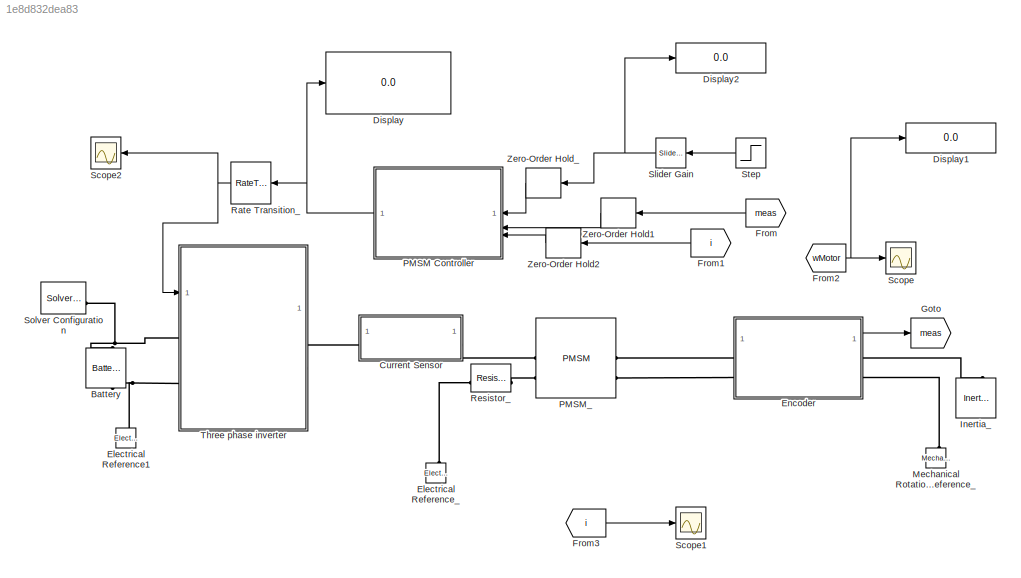
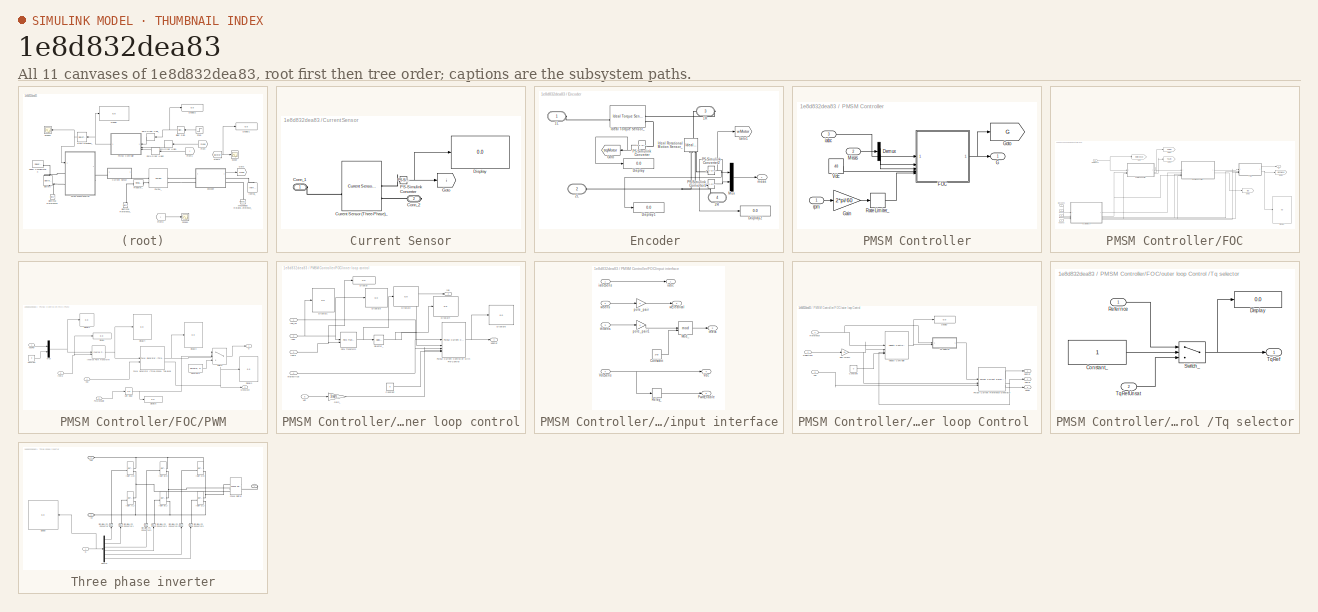
[diagram: thumbnail index - all 11 canvases of the model, root first then tree order]
MODEL slx_1e8d832dea83
KIND model
CONFIG AbsTol = auto
CONFIG EnableMultiTasking = off
CONFIG FixedStep = auto
CONFIG MaxStep = auto
CONFIG MinStep = auto
CONFIG RelTol = 1e-6
CONFIG SampleTimeConstraint = Unconstrained
CONFIG SolverName = VariableStepAuto
CONFIG StartTime = 0.0
CONFIG StopTime = 10
BLOCK [Reference] Battery  REF=batteryecm_lib/Battery
  NameLocation = right
  SourceBlock = batteryecm_lib/Battery
  SourceType = Battery
BLOCK [SubSystem] Current Sensor
BLOCK [PMIOPort] Current Sensor/Conn_1
  Side = Left
BLOCK [PMIOPort] Current Sensor/Conn_2
  NameLocation = top
  Port = 2
  Side = Right
BLOCK [Reference] Current Sensor/Current Sensor (Three-Phase)_  REF=ee_lib/Sensors &
Transducers/Current Sensor
(Three-Phase)
  SourceBlock = ee_lib/Sensors &\nTransducers/Current Sensor\n(Three-Phase)
  SourceType = Current Sensor\n(Three-Phase)
BLOCK [Display] Current Sensor/Display
  Decimation = 1
BLOCK [Goto] Current Sensor/Goto
  GotoTag = i
  TagVisibility = global
BLOCK [Reference] Current Sensor/PS-Simulink Converter  REF=nesl_utility/PS-Simulink
Converter
  SourceBlock = nesl_utility/PS-Simulink\nConverter
  SourceType = PS-Simulink\nConverter
BLOCK [Display] Display
  Decimation = 1
BLOCK [Display] Display1
  Decimation = 1
BLOCK [Display] Display2
  Decimation = 1
BLOCK [Reference] Electrical Reference1  REF=fl_lib/Electrical/Electrical Elements/Electrical Reference
  NameLocation = right
  SourceBlock = fl_lib/Electrical/Electrical Elements/Electrical Reference
  SourceType = Electrical Reference
BLOCK [Reference] Electrical Reference_  REF=fl_lib/Electrical/Electrical Elements/Electrical Reference
  NameLocation = right
  SourceBlock = fl_lib/Electrical/Electrical Elements/Electrical Reference
  SourceType = Electrical Reference
BLOCK [SubSystem] Encoder 
BLOCK [PMIOPort] Encoder /1L
  Side = Left
BLOCK [PMIOPort] Encoder /1R
  NameLocation = top
  Port = 3
  Side = Right
BLOCK [PMIOPort] Encoder /2L
  Port = 2
  Side = Left
BLOCK [PMIOPort] Encoder /2R
  NameLocation = top
  Port = 4
  Side = Right
BLOCK [Display] Encoder /Display
  Decimation = 1
BLOCK [Display] Encoder /Display1
  Decimation = 1
BLOCK [Display] Encoder /Display2
  Decimation = 1
BLOCK [Goto] Encoder /Goto
  GotoTag = trqMotor
  NameLocation = top
  TagVisibility = global
BLOCK [Goto] Encoder /Goto1
  GotoTag = wMotor
  TagVisibility = global
BLOCK [Reference] Encoder /Ideal Rotational Motion Sensor_  REF=fl_lib/Mechanical/Mechanical Sensors/Ideal Rotational
Motion Sensor
  NameLocation = left
  SourceBlock = fl_lib/Mechanical/Mechanical Sensors/Ideal Rotational\nMotion Sensor
  SourceType = Ideal Rotational\nMotion Sensor
BLOCK [Reference] Encoder /Ideal Torque Sensor_  REF=fl_lib/Mechanical/Mechanical Sensors/Ideal Torque Sensor
  SourceBlock = fl_lib/Mechanical/Mechanical Sensors/Ideal Torque Sensor
  SourceType = Ideal Torque Sensor
BLOCK [Mux] Encoder /Mux
  DisplayOption = bar
  Inputs = 2
BLOCK [Reference] Encoder /PS-Simulink Converter  REF=nesl_utility/PS-Simulink
Converter
  NameLocation = top
  SourceBlock = nesl_utility/PS-Simulink\nConverter
  SourceType = PS-Simulink\nConverter
BLOCK [Reference] Encoder /PS-Simulink Converter1  REF=nesl_utility/PS-Simulink
Converter
  SourceBlock = nesl_utility/PS-Simulink\nConverter
  SourceType = PS-Simulink\nConverter
BLOCK [Reference] Encoder /PS-Simulink Converter2  REF=nesl_utility/PS-Simulink
Converter
  SourceBlock = nesl_utility/PS-Simulink\nConverter
  SourceType = PS-Simulink\nConverter
BLOCK [Outport] Encoder /meas
BLOCK [From] From
  GotoTag = meas
  NameLocation = top
  TagVisibility = global
BLOCK [From] From1
  GotoTag = i
  NameLocation = top
  TagVisibility = global
BLOCK [From] From2
  GotoTag = wMotor
  TagVisibility = global
BLOCK [From] From3
  GotoTag = i
  TagVisibility = global
BLOCK [Goto] Goto
  GotoTag = meas
  TagVisibility = global
BLOCK [Reference] Inertia_  REF=fl_lib/Mechanical/Rotational Elements/Inertia
  NameLocation = right
  SourceBlock = fl_lib/Mechanical/Rotational Elements/Inertia
  SourceType = Inertia
BLOCK [Reference] Mechanical Rotational Reference_  REF=fl_lib/Mechanical/Rotational Elements/Mechanical
Rotational Reference
  NameLocation = right
  SourceBlock = fl_lib/Mechanical/Rotational Elements/Mechanical\nRotational Reference
  SourceType = Mechanical\nRotational Reference
BLOCK [SubSystem] PMSM Controller
  NameLocation = top
BLOCK [Demux] PMSM Controller/Demux
  Outputs = 2
BLOCK [SubSystem] PMSM Controller/FOC
BLOCK [Display] PMSM Controller/FOC/Display
  Decimation = 1
BLOCK [Outport] PMSM Controller/FOC/G
BLOCK [Goto] PMSM Controller/FOC/Goto
  GotoTag = Reference
  TagVisibility = global
BLOCK [Goto] PMSM Controller/FOC/Goto1
  GotoTag = TqRef
  TagVisibility = global
BLOCK [Goto] PMSM Controller/FOC/Goto2
  GotoTag = TqLim
  TagVisibility = global
BLOCK [Goto] PMSM Controller/FOC/Goto3
  GotoTag = idq
  TagVisibility = global
BLOCK [Goto] PMSM Controller/FOC/Goto4
  GotoTag = ModWave
  TagVisibility = global
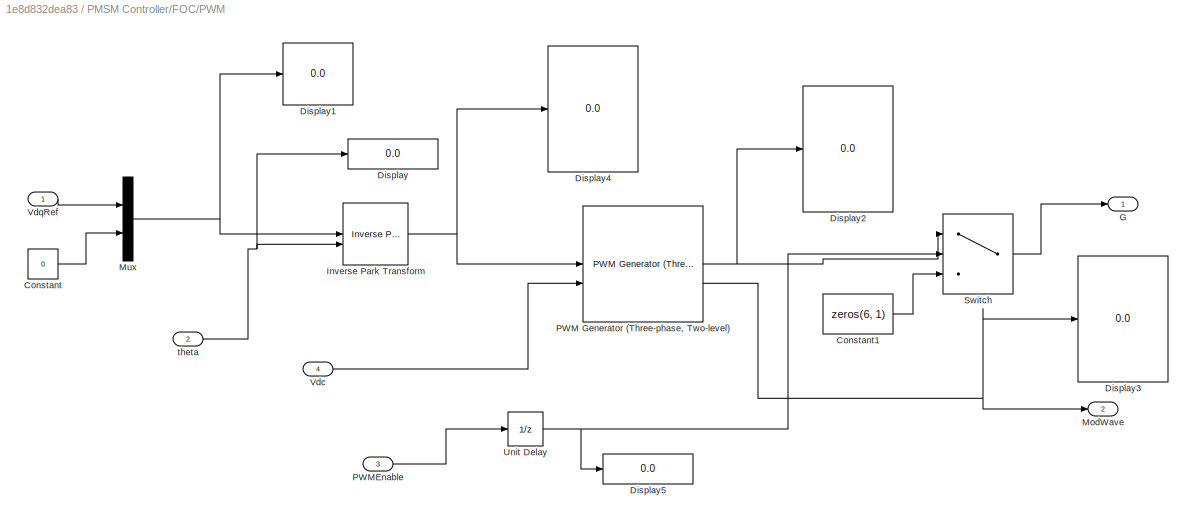
BLOCK [SubSystem] PMSM Controller/FOC/PWM
BLOCK [Outport] PMSM Controller/FOC/PWM/  G 	
BLOCK [Constant] PMSM Controller/FOC/PWM/Constant
  Value = 0
BLOCK [Constant] PMSM Controller/FOC/PWM/Constant1
  Value = zeros(6, 1)
BLOCK [Display] PMSM Controller/FOC/PWM/Display
  Decimation = 1
BLOCK [Display] PMSM Controller/FOC/PWM/Display1
  Decimation = 1
BLOCK [Display] PMSM Controller/FOC/PWM/Display2
  Decimation = 1
BLOCK [Display] PMSM Controller/FOC/PWM/Display3
  Decimation = 1
BLOCK [Display] PMSM Controller/FOC/PWM/Display4
  Decimation = 1
BLOCK [Display] PMSM Controller/FOC/PWM/Display5
  Decimation = 1
BLOCK [Reference] PMSM Controller/FOC/PWM/Inverse Park Transform  REF=eeTransforms/Inverse
Park Transform
  SourceBlock = eeTransforms/Inverse\nPark Transform
  SourceType = Inverse Park Transform
BLOCK [Outport] PMSM Controller/FOC/PWM/ModWave
  Port = 2
BLOCK [Mux] PMSM Controller/FOC/PWM/Mux
  DisplayOption = bar
  Inputs = 2
BLOCK [Reference] PMSM Controller/FOC/PWM/PWM Generator (Three-phase, Two-level)  REF=eePwmGeneratorTwoLevel/PWM Generator
(Three-phase, Two-level)
  SourceBlock = eePwmGeneratorTwoLevel/PWM Generator\n(Three-phase, Two-level)
  SourceType = PWM Generator (three-phase, two-level)
BLOCK [Inport] PMSM Controller/FOC/PWM/PWMEnable
  Port = 3
BLOCK [Switch] PMSM Controller/FOC/PWM/Switch
  Criteria = u2 > Threshold
  InputSameDT = off
  SaturateOnIntegerOverflow = off
BLOCK [UnitDelay] PMSM Controller/FOC/PWM/Unit Delay
  HasFrameUpgradeWarning = on
  SampleTime = -1
BLOCK [Inport] PMSM Controller/FOC/PWM/Vdc
  Port = 4
BLOCK [Inport] PMSM Controller/FOC/PWM/VdqRef
BLOCK [Inport] PMSM Controller/FOC/PWM/theta 
  Port = 2
BLOCK [Inport] PMSM Controller/FOC/Reference
  Port = 5
BLOCK [Inport] PMSM Controller/FOC/VdSens
  Port = 4
BLOCK [Inport] PMSM Controller/FOC/iabcSens
BLOCK [SubSystem] PMSM Controller/FOC/inner loop control
BLOCK [Constant] PMSM Controller/FOC/inner loop control/Constant
  Value = 0
BLOCK [Display] PMSM Controller/FOC/inner loop control/Display
  Decimation = 1
BLOCK [Display] PMSM Controller/FOC/inner loop control/Display1
  Decimation = 1
BLOCK [Display] PMSM Controller/FOC/inner loop control/Display2
  Decimation = 1
BLOCK [Display] PMSM Controller/FOC/inner loop control/Display3
  Decimation = 1
BLOCK [Display] PMSM Controller/FOC/inner loop control/Display4
  Decimation = 1
BLOCK [Display] PMSM Controller/FOC/inner loop control/Display5
  Decimation = 1
BLOCK [Gain] PMSM Controller/FOC/inner loop control/Gain_
  Gain = 1/sqrt(3)
BLOCK [Reference] PMSM Controller/FOC/inner loop control/PMSM Current Controller with Pre-Control  REF=eePmsmCurrentController/PMSM Current Controller
with Pre-Control
  SourceBlock = eePmsmCurrentController/PMSM Current Controller\nwith Pre-Control
  SourceType = PMSM Current Controller with Pre-Control
BLOCK [Reference] PMSM Controller/FOC/inner loop control/Park Transform  REF=eeTransforms/Park Transform
  SourceBlock = eeTransforms/Park Transform
  SourceType = Park Transform
BLOCK [Selector] PMSM Controller/FOC/inner loop control/Selector_
  IndexOptions = Index vector (dialog)
  Indices = [1 2]
  InputPortWidth = 3
  OutputSizes = 1
BLOCK [Inport] PMSM Controller/FOC/inner loop control/Vdc
  Port = 5
BLOCK [Outport] PMSM Controller/FOC/inner loop control/VdqRef
BLOCK [Inport] PMSM Controller/FOC/inner loop control/iabc
  Port = 2
BLOCK [Outport] PMSM Controller/FOC/inner loop control/idq
  Port = 2
BLOCK [Inport] PMSM Controller/FOC/inner loop control/idq_ref
BLOCK [Inport] PMSM Controller/FOC/inner loop control/theta
  Port = 3
BLOCK [Inport] PMSM Controller/FOC/inner loop control/wElectrical
  Port = 4
BLOCK [SubSystem] PMSM Controller/FOC/input interface
BLOCK [Constant] PMSM Controller/FOC/input interface/Constant
  Value = 2*pi
BLOCK [Math] PMSM Controller/FOC/input interface/Mod_
  Operator = mod
BLOCK [Outport] PMSM Controller/FOC/input interface/PwmEnable
  Port = 5
BLOCK [Relay] PMSM Controller/FOC/input interface/Relay_
BLOCK [Outport] PMSM Controller/FOC/input interface/Vdc
  Port = 4
BLOCK [Inport] PMSM Controller/FOC/input interface/VdcSens
  Port = 4
BLOCK [Outport] PMSM Controller/FOC/input interface/iabc
BLOCK [Inport] PMSM Controller/FOC/input interface/iabcSens
BLOCK [Gain] PMSM Controller/FOC/input interface/pole_pair
  Gain = 4
BLOCK [Gain] PMSM Controller/FOC/input interface/pole_pair1
  Gain = 4
BLOCK [Inport] PMSM Controller/FOC/input interface/thSens
  Port = 3
BLOCK [Outport] PMSM Controller/FOC/input interface/theta
  Port = 3
BLOCK [Outport] PMSM Controller/FOC/input interface/wElectrical
  Port = 2
BLOCK [Inport] PMSM Controller/FOC/input interface/wSens
  Port = 2
BLOCK [SubSystem] PMSM Controller/FOC/outer loop Control 
BLOCK [Constant] PMSM Controller/FOC/outer loop Control /Constant
  Value = 0
BLOCK [Display] PMSM Controller/FOC/outer loop Control /Display
  Decimation = 1
BLOCK [Reference] PMSM Controller/FOC/outer loop Control /PMSM Current Reference Generator  REF=eePmsmCurrentReferenceGen/PMSM Current Reference
Generator
  SourceBlock = eePmsmCurrentReferenceGen/PMSM Current Reference\nGenerator
  SourceType = PMSM Current Reference Generator
BLOCK [Inport] PMSM Controller/FOC/outer loop Control /Reference
BLOCK [SubSystem] PMSM Controller/FOC/outer loop Control /Tq selector
BLOCK [Constant] PMSM Controller/FOC/outer loop Control /Tq selector/Constant_
  SampleTime = -1
BLOCK [Display] PMSM Controller/FOC/outer loop Control /Tq selector/Display
  Decimation = 1
BLOCK [Inport] PMSM Controller/FOC/outer loop Control /Tq selector/Refernce
BLOCK [Switch] PMSM Controller/FOC/outer loop Control /Tq selector/Switch_
  Criteria = u2 > Threshold
  InputSameDT = off
  SaturateOnIntegerOverflow = off
  Threshold = 1.5
BLOCK [Outport] PMSM Controller/FOC/outer loop Control /Tq selector/TqRef
BLOCK [Inport] PMSM Controller/FOC/outer loop Control /Tq selector/TqRefUnsat
  Port = 2
BLOCK [Outport] PMSM Controller/FOC/outer loop Control /TqLim
  Port = 3
BLOCK [Outport] PMSM Controller/FOC/outer loop Control /TqRef
  Port = 2
BLOCK [Inport] PMSM Controller/FOC/outer loop Control /Vdc
  Port = 3
BLOCK [Reference] PMSM Controller/FOC/outer loop Control /Velocity Controller  REF=eeVelocityController/Velocity Controller
  SourceBlock = eeVelocityController/Velocity Controller
  SourceType = Velocity Controller
BLOCK [Gain] PMSM Controller/FOC/outer loop Control /elec->mech
  Gain = 1/4
BLOCK [Outport] PMSM Controller/FOC/outer loop Control /idqRef
BLOCK [Inport] PMSM Controller/FOC/outer loop Control /wElectrical
  Port = 2
BLOCK [Inport] PMSM Controller/FOC/thSens
  Port = 3
BLOCK [Inport] PMSM Controller/FOC/wSens
  Port = 2
BLOCK [Outport] PMSM Controller/G
BLOCK [Gain] PMSM Controller/Gain
  Gain = 2*pi/60
BLOCK [Goto] PMSM Controller/Goto
  GotoTag = G
  TagVisibility = global
BLOCK [Inport] PMSM Controller/Meas
  Port = 2
BLOCK [RateLimiter] PMSM Controller/Rate Limiter_
  SampleTimeMode = inherited
BLOCK [Constant] PMSM Controller/Vdc
  Value = 48
BLOCK [Inport] PMSM Controller/iabc
  Port = 3
BLOCK [Inport] PMSM Controller/rpm
BLOCK [Reference] PMSM_  REF=ee_lib/Electromechanical/Permanent Magnet/PMSM
  SourceBlock = ee_lib/Electromechanical/Permanent Magnet/PMSM
  SourceType = PMSM
BLOCK [RateTransition] Rate Transition_
  NameLocation = top
BLOCK [Reference] Resistor_  REF=fl_lib/Electrical/Electrical Elements/Resistor
  SourceBlock = fl_lib/Electrical/Electrical Elements/Resistor
  SourceType = Resistor
BLOCK [Scope] Scope
  Floating = off
  NumInputPorts = 1
  ScopeSpecificationString = Simulink.scopes.TimeScopeBlockCfg('CurrentConfiguration', extmgr.ConfigurationSet(extmgr.Configuration('Core','General UI',true),extmgr.Configuration('Core','Source UI',true),extmgr.Configuration('Sources','WiredSimulink',true),extmgr.Configuration('Visuals','Time Domain',true,'SerializedDisplays',{struct('MinYLimReal','-10.44715','MaxYLimReal','14.53898','YLabelReal','','MinYLimMag','0.00000','Ma...<+1400ch>
BLOCK [Scope] Scope1
  Floating = off
  NumInputPorts = 1
  ScopeSpecificationString = Simulink.scopes.TimeScopeBlockCfg('CurrentConfiguration', extmgr.ConfigurationSet(extmgr.Configuration('Core','General UI',true),extmgr.Configuration('Core','Source UI',true),extmgr.Configuration('Sources','WiredSimulink',true,'DataLoggingVariableName','ScopeData1'),extmgr.Configuration('Visuals','Time Domain',true,'SerializedDisplays',{struct('MinYLimReal','-33.78741','MaxYLimReal','33.25836','YL...<+1490ch>
BLOCK [Scope] Scope2
  Floating = off
  NameLocation = top
  NumInputPorts = 1
  ScopeSpecificationString = Simulink.scopes.TimeScopeBlockCfg('CurrentConfiguration', extmgr.ConfigurationSet(extmgr.Configuration('Core','General UI',true),extmgr.Configuration('Core','Source UI',true),extmgr.Configuration('Sources','WiredSimulink',true,'DataLoggingVariableName','ScopeData2'),extmgr.Configuration('Visuals','Time Domain',true,'SerializedDisplays',{struct('MinYLimReal','-0.125','MaxYLimReal','1.125','YLabelRe...<+1534ch>
BLOCK [Reference] Slider Gain  REF=simulink/Math
Operations/Slider
Gain
  NameLocation = top
  SourceBlock = simulink/Math\nOperations/Slider\nGain
  SourceType = Slider Gain
BLOCK [Reference] Solver Configuration  REF=nesl_utility/Solver
Configuration
  SourceBlock = nesl_utility/Solver\nConfiguration
  SourceType = Solver\nConfiguration
BLOCK [Step] Step
  After = 3000
  NameLocation = top
  SampleTime = 0
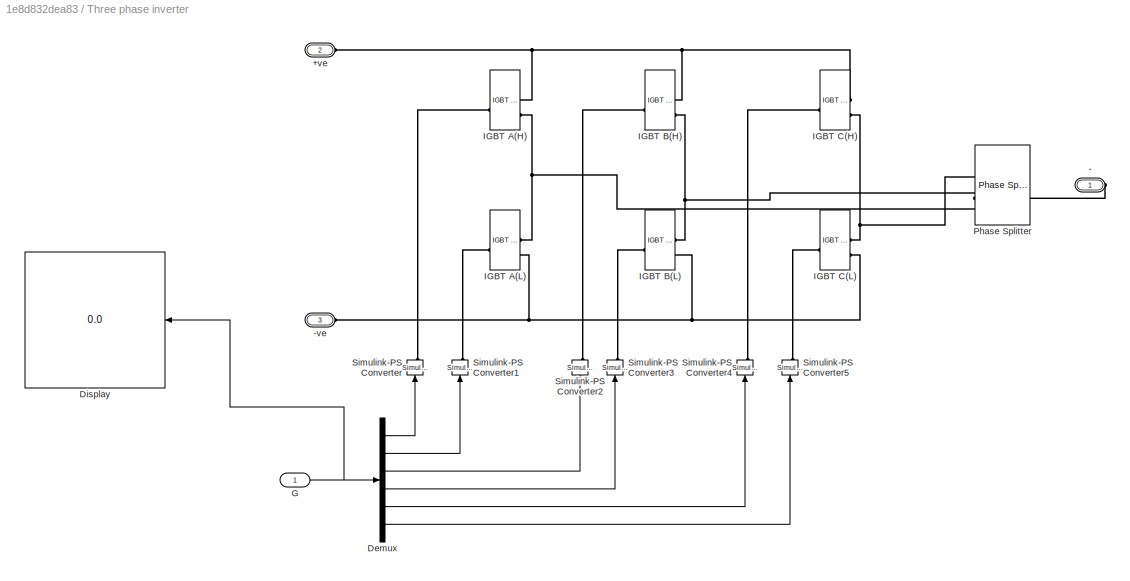
BLOCK [SubSystem] Three phase inverter
BLOCK [PMIOPort] Three phase inverter/+ve
  Port = 2
  Side = Left
BLOCK [PMIOPort] Three phase inverter/-
  NameLocation = top
  Side = Right
BLOCK [PMIOPort] Three phase inverter/-ve
  Port = 3
  Side = Left
BLOCK [Demux] Three phase inverter/Demux
  Outputs = 6
BLOCK [Display] Three phase inverter/Display
  Decimation = 1
BLOCK [Inport] Three phase inverter/G
BLOCK [Reference] Three phase inverter/IGBT A(H)  REF=ee_lib/Semiconductors &
Converters/IGBT
(Ideal,
Switching)
  SourceBlock = ee_lib/Semiconductors &\nConverters/IGBT\n(Ideal,\nSwitching)
  SourceType = IGBT\n(Ideal,\nSwitching)
BLOCK [Reference] Three phase inverter/IGBT A(L)  REF=ee_lib/Semiconductors &
Converters/IGBT
(Ideal,
Switching)
  SourceBlock = ee_lib/Semiconductors &\nConverters/IGBT\n(Ideal,\nSwitching)
  SourceType = IGBT\n(Ideal,\nSwitching)
BLOCK [Reference] Three phase inverter/IGBT B(H)  REF=ee_lib/Semiconductors &
Converters/IGBT
(Ideal,
Switching)
  SourceBlock = ee_lib/Semiconductors &\nConverters/IGBT\n(Ideal,\nSwitching)
  SourceType = IGBT\n(Ideal,\nSwitching)
BLOCK [Reference] Three phase inverter/IGBT B(L)  REF=ee_lib/Semiconductors &
Converters/IGBT
(Ideal,
Switching)
  SourceBlock = ee_lib/Semiconductors &\nConverters/IGBT\n(Ideal,\nSwitching)
  SourceType = IGBT\n(Ideal,\nSwitching)
BLOCK [Reference] Three phase inverter/IGBT C(H)  REF=ee_lib/Semiconductors &
Converters/IGBT
(Ideal,
Switching)
  SourceBlock = ee_lib/Semiconductors &\nConverters/IGBT\n(Ideal,\nSwitching)
  SourceType = IGBT\n(Ideal,\nSwitching)
BLOCK [Reference] Three phase inverter/IGBT C(L)  REF=ee_lib/Semiconductors &
Converters/IGBT
(Ideal,
Switching)
  SourceBlock = ee_lib/Semiconductors &\nConverters/IGBT\n(Ideal,\nSwitching)
  SourceType = IGBT\n(Ideal,\nSwitching)
BLOCK [Reference] Three phase inverter/Phase Splitter  REF=ee_lib/Connectors &
References/Phase Splitter
  NameLocation = top
  SourceBlock = ee_lib/Connectors &\nReferences/Phase Splitter
  SourceType = Phase Splitter
BLOCK [Reference] Three phase inverter/Simulink-PS Converter  REF=nesl_utility/Simulink-PS
Converter
  NameLocation = right
  SourceBlock = nesl_utility/Simulink-PS\nConverter
  SourceType = Simulink-PS\nConverter
BLOCK [Reference] Three phase inverter/Simulink-PS Converter1  REF=nesl_utility/Simulink-PS
Converter
  NameLocation = right
  SourceBlock = nesl_utility/Simulink-PS\nConverter
  SourceType = Simulink-PS\nConverter
BLOCK [Reference] Three phase inverter/Simulink-PS Converter2  REF=nesl_utility/Simulink-PS
Converter
  NameLocation = right
  SourceBlock = nesl_utility/Simulink-PS\nConverter
  SourceType = Simulink-PS\nConverter
BLOCK [Reference] Three phase inverter/Simulink-PS Converter3  REF=nesl_utility/Simulink-PS
Converter
  NameLocation = right
  SourceBlock = nesl_utility/Simulink-PS\nConverter
  SourceType = Simulink-PS\nConverter
BLOCK [Reference] Three phase inverter/Simulink-PS Converter4  REF=nesl_utility/Simulink-PS
Converter
  NameLocation = right
  SourceBlock = nesl_utility/Simulink-PS\nConverter
  SourceType = Simulink-PS\nConverter
BLOCK [Reference] Three phase inverter/Simulink-PS Converter5  REF=nesl_utility/Simulink-PS
Converter
  NameLocation = right
  SourceBlock = nesl_utility/Simulink-PS\nConverter
  SourceType = Simulink-PS\nConverter
BLOCK [ZeroOrderHold] Zero-Order Hold1
  NameLocation = top
  SampleTime = -1
BLOCK [ZeroOrderHold] Zero-Order Hold2
  NameLocation = top
  SampleTime = -1
BLOCK [ZeroOrderHold] Zero-Order Hold_
  NameLocation = top
  SampleTime = -1
NET Current Sensor/PS-Simulink Converter:1 -> Current Sensor/Display:1, Current Sensor/Goto:1
LINE Encoder /Mux:1 -> Encoder /meas:1
NET Encoder /PS-Simulink Converter1:1 -> Encoder /Display2:1, Encoder /Mux:2
NET Encoder /PS-Simulink Converter2:1 -> Encoder /Display1:1, Encoder /Goto1:1, Encoder /Mux:1
NET Encoder /PS-Simulink Converter:1 -> Encoder /Display:1, Encoder /Goto:1
LINE Encoder :1 -> Goto:1
LINE From1:1 -> Zero-Order Hold2:1
NET From2:1 -> Display1:1, Scope:1
LINE From3:1 -> Scope1:1
LINE From:1 -> Zero-Order Hold1:1
LINE PMSM Controller/Demux:1 -> PMSM Controller/FOC:2
LINE PMSM Controller/Demux:2 -> PMSM Controller/FOC:3
LINE PMSM Controller/FOC/PWM/Constant1:1 -> PMSM Controller/FOC/PWM/Switch:3
LINE PMSM Controller/FOC/PWM/Constant:1 -> PMSM Controller/FOC/PWM/Mux:2
NET PMSM Controller/FOC/PWM/Inverse Park Transform:1 -> PMSM Controller/FOC/PWM/Display4:1, PMSM Controller/FOC/PWM/PWM Generator (Three-phase, Two-level):1
NET PMSM Controller/FOC/PWM/Mux:1 -> PMSM Controller/FOC/PWM/Display1:1, PMSM Controller/FOC/PWM/Inverse Park Transform:1
NET PMSM Controller/FOC/PWM/PWM Generator (Three-phase, Two-level):1 -> PMSM Controller/FOC/PWM/Display2:1, PMSM Controller/FOC/PWM/Switch:1
NET PMSM Controller/FOC/PWM/PWM Generator (Three-phase, Two-level):2 -> PMSM Controller/FOC/PWM/Display3:1, PMSM Controller/FOC/PWM/ModWave:1
LINE PMSM Controller/FOC/PWM/PWMEnable:1 -> PMSM Controller/FOC/PWM/Unit Delay:1
LINE PMSM Controller/FOC/PWM/Switch:1 -> PMSM Controller/FOC/PWM/  G 	:1
NET PMSM Controller/FOC/PWM/Unit Delay:1 -> PMSM Controller/FOC/PWM/Display5:1, PMSM Controller/FOC/PWM/Switch:2
LINE PMSM Controller/FOC/PWM/Vdc:1 -> PMSM Controller/FOC/PWM/PWM Generator (Three-phase, Two-level):2
LINE PMSM Controller/FOC/PWM/VdqRef:1 -> PMSM Controller/FOC/PWM/Mux:1
NET PMSM Controller/FOC/PWM/theta :1 -> PMSM Controller/FOC/PWM/Display:1, PMSM Controller/FOC/PWM/Inverse Park Transform:2
LINE PMSM Controller/FOC/PWM:1 -> PMSM Controller/FOC/G:1
NET PMSM Controller/FOC/PWM:2 -> PMSM Controller/FOC/Display:1, PMSM Controller/FOC/Goto4:1
NET PMSM Controller/FOC/Reference:1 -> PMSM Controller/FOC/Goto:1, PMSM Controller/FOC/outer loop Control :1
LINE PMSM Controller/FOC/VdSens:1 -> PMSM Controller/FOC/input interface:4
LINE PMSM Controller/FOC/iabcSens:1 -> PMSM Controller/FOC/input interface:1
LINE PMSM Controller/FOC/inner loop control/Constant:1 -> PMSM Controller/FOC/inner loop control/PMSM Current Controller with Pre-Control:5
LINE PMSM Controller/FOC/inner loop control/Gain_:1 -> PMSM Controller/FOC/inner loop control/PMSM Current Controller with Pre-Control:4
NET PMSM Controller/FOC/inner loop control/PMSM Current Controller with Pre-Control:1 -> PMSM Controller/FOC/inner loop control/Display5:1, PMSM Controller/FOC/inner loop control/VdqRef:1
NET PMSM Controller/FOC/inner loop control/Park Transform:1 -> PMSM Controller/FOC/inner loop control/Display2:1, PMSM Controller/FOC/inner loop control/Selector_:1
NET PMSM Controller/FOC/inner loop control/Selector_:1 -> PMSM Controller/FOC/inner loop control/Display4:1, PMSM Controller/FOC/inner loop control/PMSM Current Controller with Pre-Control:2, PMSM Controller/FOC/inner loop control/idq:1
LINE PMSM Controller/FOC/inner loop control/Vdc:1 -> PMSM Controller/FOC/inner loop control/Gain_:1
NET PMSM Controller/FOC/inner loop control/iabc:1 -> PMSM Controller/FOC/inner loop control/Display1:1, PMSM Controller/FOC/inner loop control/Display3:1, PMSM Controller/FOC/inner loop control/Park Transform:1
LINE PMSM Controller/FOC/inner loop control/idq_ref:1 -> PMSM Controller/FOC/inner loop control/PMSM Current Controller with Pre-Control:1
NET PMSM Controller/FOC/inner loop control/theta:1 -> PMSM Controller/FOC/inner loop control/Display:1, PMSM Controller/FOC/inner loop control/Park Transform:2
LINE PMSM Controller/FOC/inner loop control/wElectrical:1 -> PMSM Controller/FOC/inner loop control/PMSM Current Controller with Pre-Control:3
LINE PMSM Controller/FOC/inner loop control:1 -> PMSM Controller/FOC/PWM:1
LINE PMSM Controller/FOC/inner loop control:2 -> PMSM Controller/FOC/Goto3:1
LINE PMSM Controller/FOC/input interface/Constant:1 -> PMSM Controller/FOC/input interface/Mod_:2
LINE PMSM Controller/FOC/input interface/Mod_:1 -> PMSM Controller/FOC/input interface/theta:1
LINE PMSM Controller/FOC/input interface/Relay_:1 -> PMSM Controller/FOC/input interface/PwmEnable:1
NET PMSM Controller/FOC/input interface/VdcSens:1 -> PMSM Controller/FOC/input interface/Relay_:1, PMSM Controller/FOC/input interface/Vdc:1
LINE PMSM Controller/FOC/input interface/iabcSens:1 -> PMSM Controller/FOC/input interface/iabc:1
LINE PMSM Controller/FOC/input interface/pole_pair1:1 -> PMSM Controller/FOC/input interface/Mod_:1
LINE PMSM Controller/FOC/input interface/pole_pair:1 -> PMSM Controller/FOC/input interface/wElectrical:1
LINE PMSM Controller/FOC/input interface/thSens:1 -> PMSM Controller/FOC/input interface/pole_pair1:1
LINE PMSM Controller/FOC/input interface/wSens:1 -> PMSM Controller/FOC/input interface/pole_pair:1
LINE PMSM Controller/FOC/input interface:1 -> PMSM Controller/FOC/inner loop control:2
NET PMSM Controller/FOC/input interface:2 -> PMSM Controller/FOC/inner loop control:4, PMSM Controller/FOC/outer loop Control :2
NET PMSM Controller/FOC/input interface:3 -> PMSM Controller/FOC/PWM:2, PMSM Controller/FOC/inner loop control:3
NET PMSM Controller/FOC/input interface:4 -> PMSM Controller/FOC/PWM:4, PMSM Controller/FOC/inner loop control:5, PMSM Controller/FOC/outer loop Control :3
LINE PMSM Controller/FOC/input interface:5 -> PMSM Controller/FOC/PWM:3
LINE PMSM Controller/FOC/outer loop Control /Constant:1 -> PMSM Controller/FOC/outer loop Control /Velocity Controller:4
LINE PMSM Controller/FOC/outer loop Control /PMSM Current Reference Generator:1 -> PMSM Controller/FOC/outer loop Control /idqRef:1
NET PMSM Controller/FOC/outer loop Control /PMSM Current Reference Generator:2 -> PMSM Controller/FOC/outer loop Control /TqRef:1, PMSM Controller/FOC/outer loop Control /Velocity Controller:3
LINE PMSM Controller/FOC/outer loop Control /PMSM Current Reference Generator:3 -> PMSM Controller/FOC/outer loop Control /TqLim:1
NET PMSM Controller/FOC/outer loop Control /Reference:1 -> PMSM Controller/FOC/outer loop Control /Tq selector:1, PMSM Controller/FOC/outer loop Control /Velocity Controller:1
LINE PMSM Controller/FOC/outer loop Control /Tq selector/Constant_:1 -> PMSM Controller/FOC/outer loop Control /Tq selector/Switch_:2
LINE PMSM Controller/FOC/outer loop Control /Tq selector/Refernce:1 -> PMSM Controller/FOC/outer loop Control /Tq selector/Switch_:1
NET PMSM Controller/FOC/outer loop Control /Tq selector/Switch_:1 -> PMSM Controller/FOC/outer loop Control /Tq selector/Display:1, PMSM Controller/FOC/outer loop Control /Tq selector/TqRef:1
LINE PMSM Controller/FOC/outer loop Control /Tq selector/TqRefUnsat:1 -> PMSM Controller/FOC/outer loop Control /Tq selector/Switch_:3
LINE PMSM Controller/FOC/outer loop Control /Tq selector:1 -> PMSM Controller/FOC/outer loop Control /PMSM Current Reference Generator:1
LINE PMSM Controller/FOC/outer loop Control /Vdc:1 -> PMSM Controller/FOC/outer loop Control /PMSM Current Reference Generator:3
NET PMSM Controller/FOC/outer loop Control /Velocity Controller:1 -> PMSM Controller/FOC/outer loop Control /Display:1, PMSM Controller/FOC/outer loop Control /Tq selector:2
NET PMSM Controller/FOC/outer loop Control /elec->mech:1 -> PMSM Controller/FOC/outer loop Control /PMSM Current Reference Generator:2, PMSM Controller/FOC/outer loop Control /Velocity Controller:2
LINE PMSM Controller/FOC/outer loop Control /wElectrical:1 -> PMSM Controller/FOC/outer loop Control /elec->mech:1
LINE PMSM Controller/FOC/outer loop Control :1 -> PMSM Controller/FOC/inner loop control:1
LINE PMSM Controller/FOC/outer loop Control :2 -> PMSM Controller/FOC/Goto1:1
LINE PMSM Controller/FOC/outer loop Control :3 -> PMSM Controller/FOC/Goto2:1
LINE PMSM Controller/FOC/thSens:1 -> PMSM Controller/FOC/input interface:3
LINE PMSM Controller/FOC/wSens:1 -> PMSM Controller/FOC/input interface:2
NET PMSM Controller/FOC:1 -> PMSM Controller/G:1, PMSM Controller/Goto:1
LINE PMSM Controller/Gain:1 -> PMSM Controller/Rate Limiter_:1
LINE PMSM Controller/Meas:1 -> PMSM Controller/Demux:1
LINE PMSM Controller/Rate Limiter_:1 -> PMSM Controller/FOC:5
LINE PMSM Controller/Vdc:1 -> PMSM Controller/FOC:4
LINE PMSM Controller/iabc:1 -> PMSM Controller/FOC:1
LINE PMSM Controller/rpm:1 -> PMSM Controller/Gain:1
NET PMSM Controller:1 -> Display:1, Rate Transition_:1
NET Rate Transition_:1 -> Scope2:1, Three phase inverter:1
NET Slider Gain:1 -> Display2:1, Zero-Order Hold_:1
LINE Step:1 -> Slider Gain:1
LINE Three phase inverter/Demux:1 -> Three phase inverter/Simulink-PS Converter:1
LINE Three phase inverter/Demux:2 -> Three phase inverter/Simulink-PS Converter1:1
LINE Three phase inverter/Demux:3 -> Three phase inverter/Simulink-PS Converter2:1
LINE Three phase inverter/Demux:4 -> Three phase inverter/Simulink-PS Converter3:1
LINE Three phase inverter/Demux:5 -> Three phase inverter/Simulink-PS Converter4:1
LINE Three phase inverter/Demux:6 -> Three phase inverter/Simulink-PS Converter5:1
NET Three phase inverter/G:1 -> Three phase inverter/Demux:1, Three phase inverter/Display:1
LINE Zero-Order Hold1:1 -> PMSM Controller:2
LINE Zero-Order Hold2:1 -> PMSM Controller:3
LINE Zero-Order Hold_:1 -> PMSM Controller:1
PNET net1: Battery:LConn1 -- Solver Configuration:RConn1 -- Three phase inverter:LConn1
PNET net2: Battery:RConn1 -- Electrical Reference1:LConn1 -- Three phase inverter:LConn2
PLINE Current Sensor/Conn_1:RConn1 -- Current Sensor/Current Sensor (Three-Phase)_:LConn1
PLINE Current Sensor/Conn_2:RConn1 -- Current Sensor/Current Sensor (Three-Phase)_:RConn2
PLINE Current Sensor/Current Sensor (Three-Phase)_:RConn1 -- Current Sensor/PS-Simulink Converter:LConn1
PLINE Current Sensor:LConn1 -- Three phase inverter:RConn1
PLINE Current Sensor:RConn1 -- PMSM_:LConn1
PLINE Electrical Reference_:LConn1 -- Resistor_:LConn1
PLINE Encoder /1L:RConn1 -- Encoder /Ideal Torque Sensor_:LConn1
PNET net3: Encoder /1R:RConn1 -- Encoder /Ideal Rotational Motion Sensor_:LConn1 -- Encoder /Ideal Torque Sensor_:RConn1
PNET net4: Encoder /2L:RConn1 -- Encoder /2R:RConn1 -- Encoder /Ideal Rotational Motion Sensor_:RConn1
PLINE Encoder /Ideal Rotational Motion Sensor_:RConn2 -- Encoder /PS-Simulink Converter2:LConn1
PLINE Encoder /Ideal Rotational Motion Sensor_:RConn3 -- Encoder /PS-Simulink Converter1:LConn1
PLINE Encoder /Ideal Torque Sensor_:RConn2 -- Encoder /PS-Simulink Converter:LConn1
PLINE Encoder :LConn1 -- PMSM_:RConn1
PLINE Encoder :LConn2 -- PMSM_:RConn2
PLINE Encoder :RConn1 -- Inertia_:LConn1
PLINE Encoder :RConn2 -- Mechanical Rotational Reference_:LConn1
PLINE PMSM_:LConn2 -- Resistor_:RConn1
PNET net5: Three phase inverter/+ve:RConn1 -- Three phase inverter/IGBT A(H):RConn1 -- Three phase inverter/IGBT B(H):RConn1 -- Three phase inverter/IGBT C(H):RConn1
PLINE Three phase inverter/-:RConn1 -- Three phase inverter/Phase Splitter:LConn1
PNET net6: Three phase inverter/-ve:RConn1 -- Three phase inverter/IGBT A(L):RConn2 -- Three phase inverter/IGBT B(L):RConn2 -- Three phase inverter/IGBT C(L):RConn2
PLINE Three phase inverter/IGBT A(H):LConn1 -- Three phase inverter/Simulink-PS Converter:RConn1
PNET net7: Three phase inverter/IGBT A(H):RConn2 -- Three phase inverter/IGBT A(L):RConn1 -- Three phase inverter/Phase Splitter:RConn3
PLINE Three phase inverter/IGBT A(L):LConn1 -- Three phase inverter/Simulink-PS Converter1:RConn1
PLINE Three phase inverter/IGBT B(H):LConn1 -- Three phase inverter/Simulink-PS Converter2:RConn1
PNET net8: Three phase inverter/IGBT B(H):RConn2 -- Three phase inverter/IGBT B(L):RConn1 -- Three phase inverter/Phase Splitter:RConn2
PLINE Three phase inverter/IGBT B(L):LConn1 -- Three phase inverter/Simulink-PS Converter3:RConn1
PLINE Three phase inverter/IGBT C(H):LConn1 -- Three phase inverter/Simulink-PS Converter4:RConn1
PNET net9: Three phase inverter/IGBT C(H):RConn2 -- Three phase inverter/IGBT C(L):RConn1 -- Three phase inverter/Phase Splitter:RConn1
PLINE Three phase inverter/IGBT C(L):LConn1 -- Three phase inverter/Simulink-PS Converter5:RConn1
note: NET lines group one-source signal fan-out (src -> all destinations, sorted); 1:1 wires keep LINE; PNET lines group multi-terminal physical nets as a canonical sorted terminal list (undirected conserving connections); 2-terminal nets keep the pairwise PLINE form
